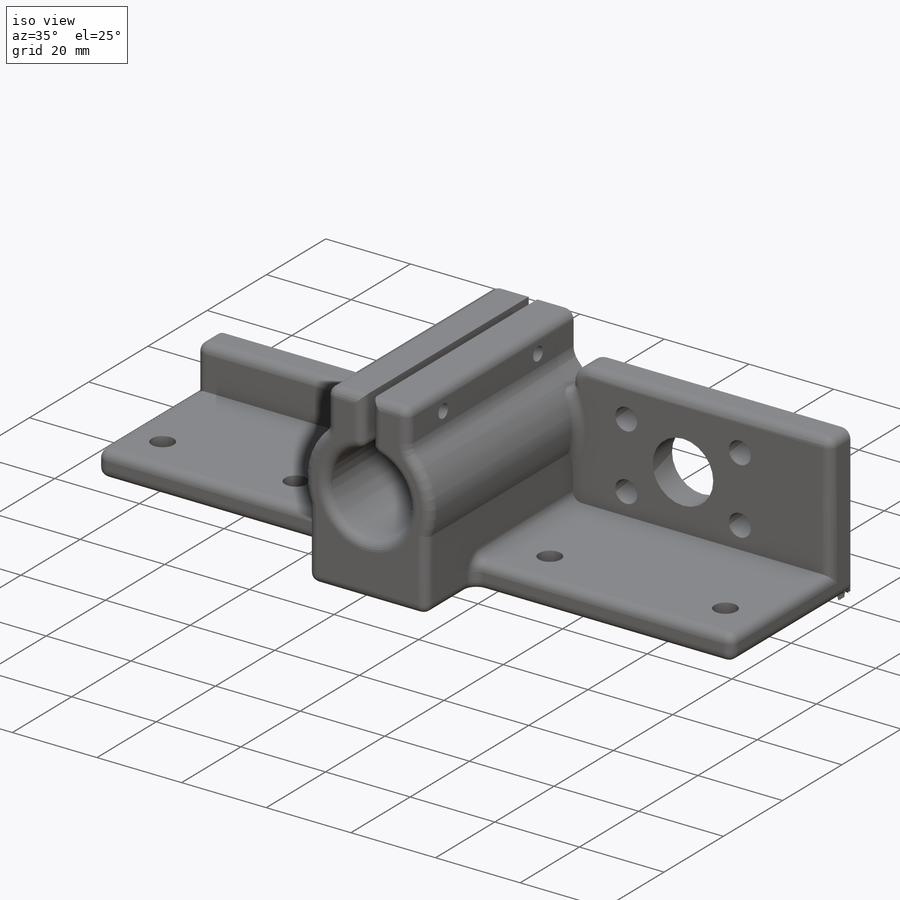
[diagram: iso view]
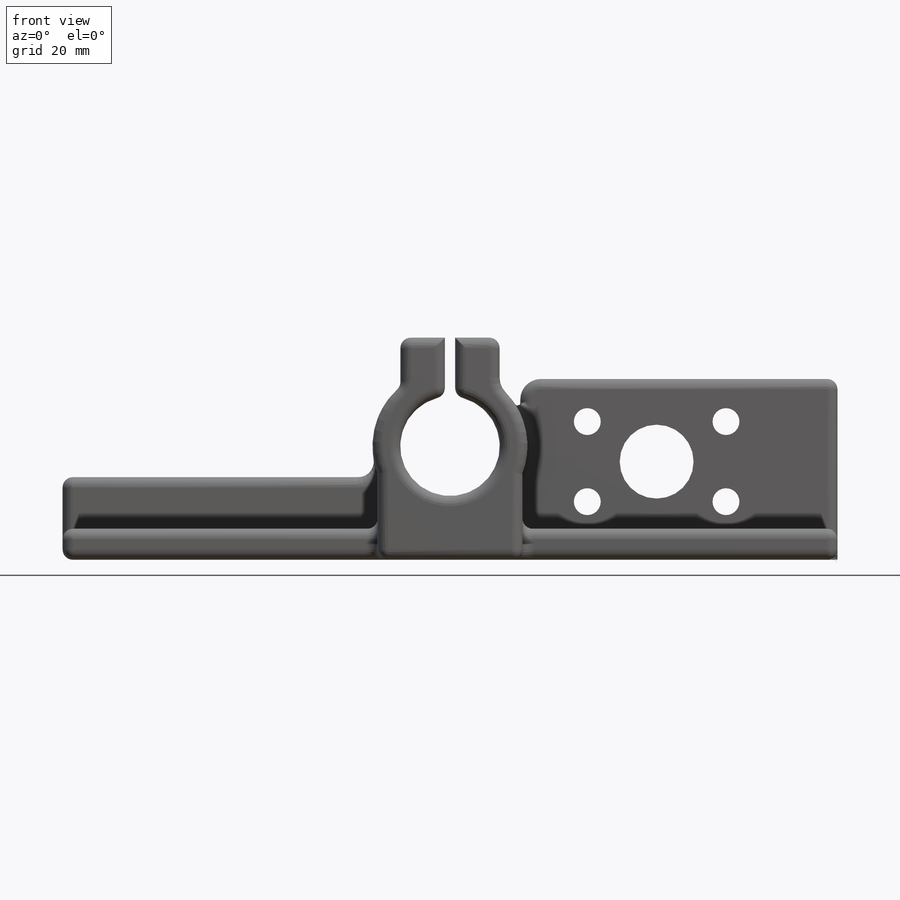
[diagram: front view]
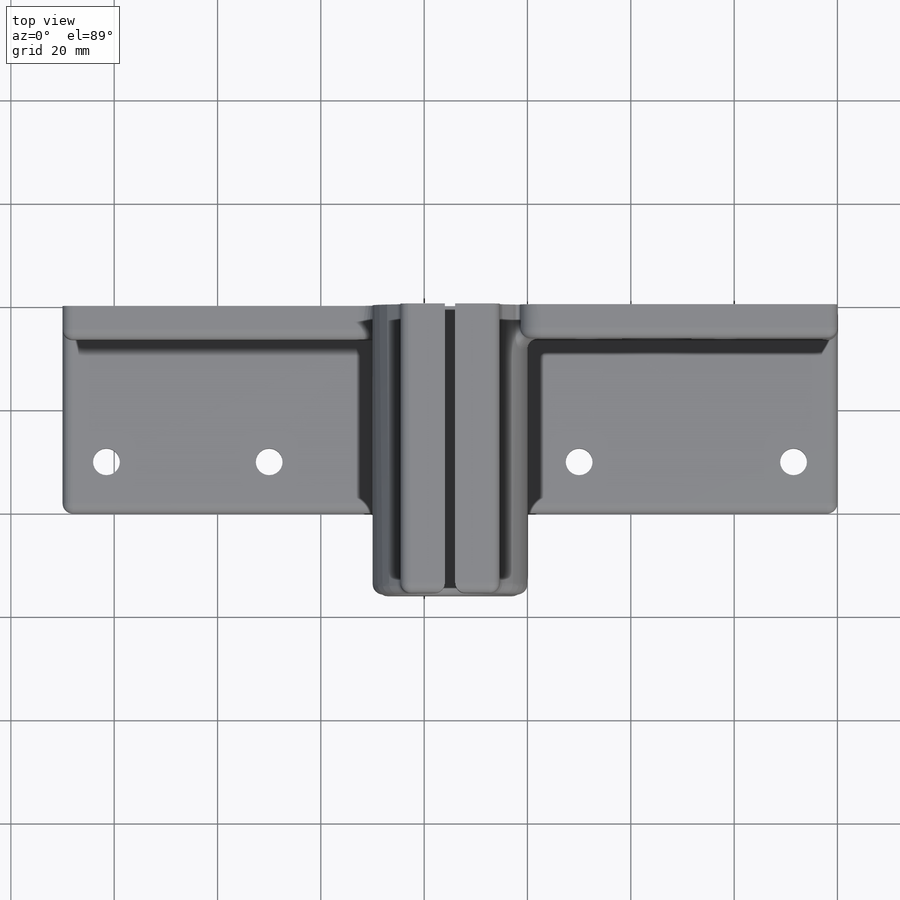
[diagram: top view]
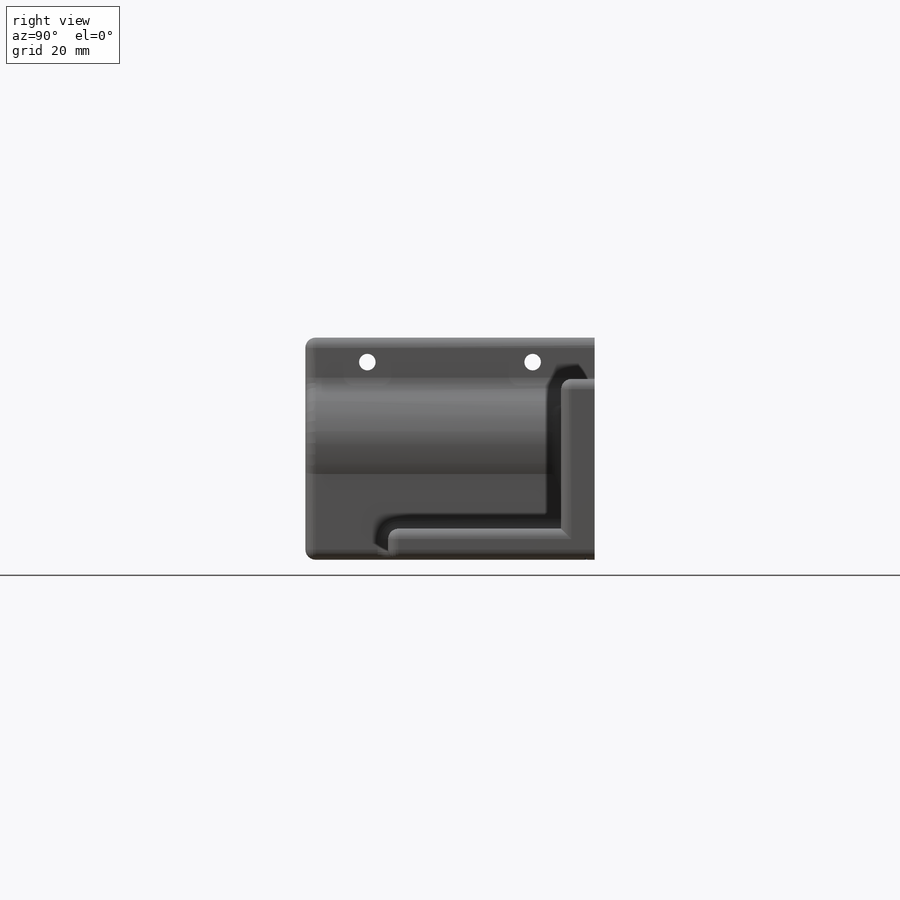
[diagram: right view]
SOLIDWORKS PART (.sldprt)
format: sldprt  version: not decoded by parser v0  size: 620,032 bytes
history: native  units: mm
features: sketch x4, extrude x3, material x1, cut_extrude x1, fillet x1 (+13 scaffold rows collapsed)
feature tree (23):
  scaffold x13  (default folders/planes/origin — collapsed)
  material  "ABS"
  sketch  "Sketch1"  dims[c1.D6=5.2mm c1.D7=5.2mm c1.D8=5.2mm c1.D9=5.2mm c1.D10=5.2mm c1.D1=56.0mm c1.D2=92.0mm c1.D3=150.0mm c1.D4=20.0mm c1.D5=10.0mm c2.D7=8.5mm c2.D8=40.0mm c2.D9=8.5mm c2.D10=50.0mm c2.D5=25.0mm c2.D4=30.0mm c3.D5=10.0mm]
  extrude  "Boss-Extrude1"  Depth=6mm
  sketch  "Sketch3"  dims[c1.D2=19.3mm c1.D4=~9.737657mm c1.D5=~9.737657mm c1.D6=14.3mm c1.D7=~3.612808mm c1.D8=~3.612808mm c1.D9=14.3mm c1.D10=5.2mm c2.D5=9.5mm c2.D9=14.3mm c2.D3=9.65mm c3.D9=14.3mm c3.D16=15.0mm c3.D19=3.0mm c3.D21=4.0mm c3.D20=0.5mm c3.D23=4.0mm c3.D1=2.0mm c3.D3=16.0mm c3.D4=40.0mm c3.D5=35.0mm c3.D7=26.846mm c3.D8=15.5mm c4.D9=21.8mm c4.D11=43.0mm c4.D12=2.0mm c4.D13=8.6mm c5.D12=2.0mm c5.D14=1.0mm c5.D5=75.0mm c5.D11=43.0mm c5.D9=22.0mm c5.D3=22.0mm c5.D16=~27.802878mm c6.D3=22.0mm c6.D16=90.0mm c6.D9=19.0mm c6.D11=43.0mm c6.D17=4.0mm c6.D18=10.0mm c6.D20=15.0mm c7.D20=65.0deg c7.D22=8.0mm c7.D15=~7.731993mm c7.D17=4.0mm]
  extrude  "Boss-Extrude2"  Depth=6.5mm
  sketch  "Sketch4"  dims[D1=14.0mm D2=~16.614835mm]
  extrude  "Boss-Extrude3"  Depth=49.5mm
  sketch  "Sketch5"  dims[c1.D1=3.2mm c1.D2=3.2mm c1.D3=3.2mm c2.D2=12.0mm c2.D3=12.0mm]
  cut_extrude  "Cut-Extrude1"  [1 undecoded]
  fillet  "Fillet1"  Radius=2mm
decode coverage: 8 of 9 modeling features carry decoded parameters
note: ~ marks probable driven/reference dimensions
note: 1 parameter value undecoded
note: suppression state not decoded; provenance and decode notes live in map.json
